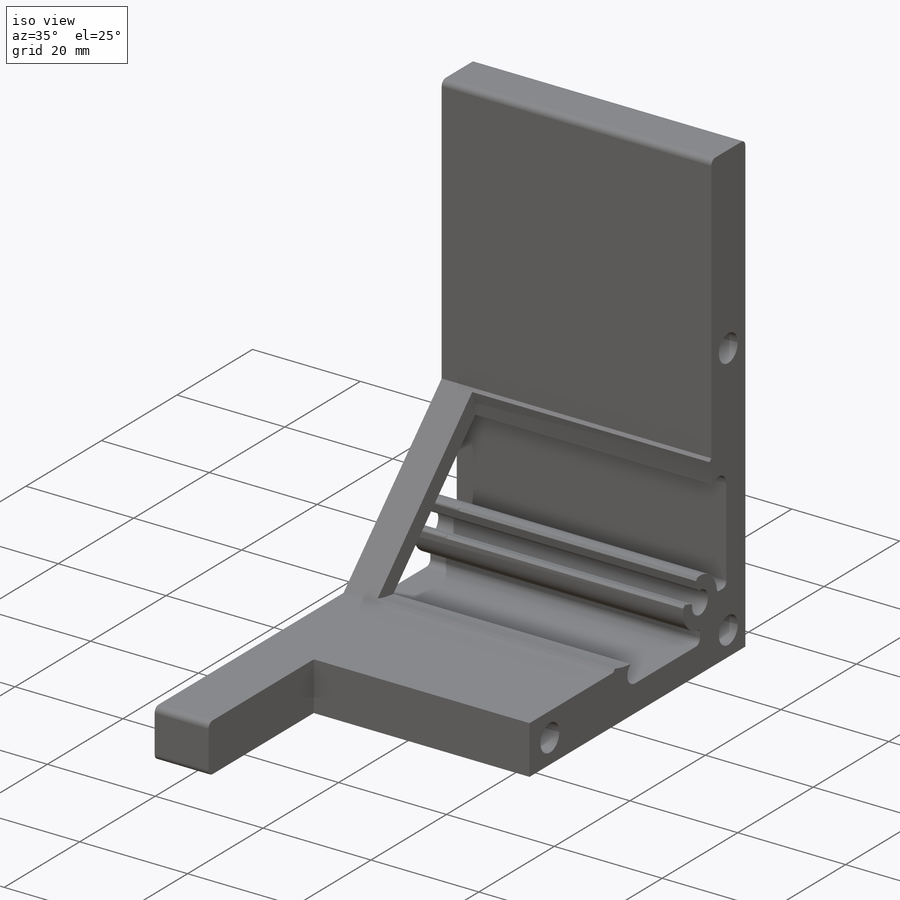
[diagram: iso view]
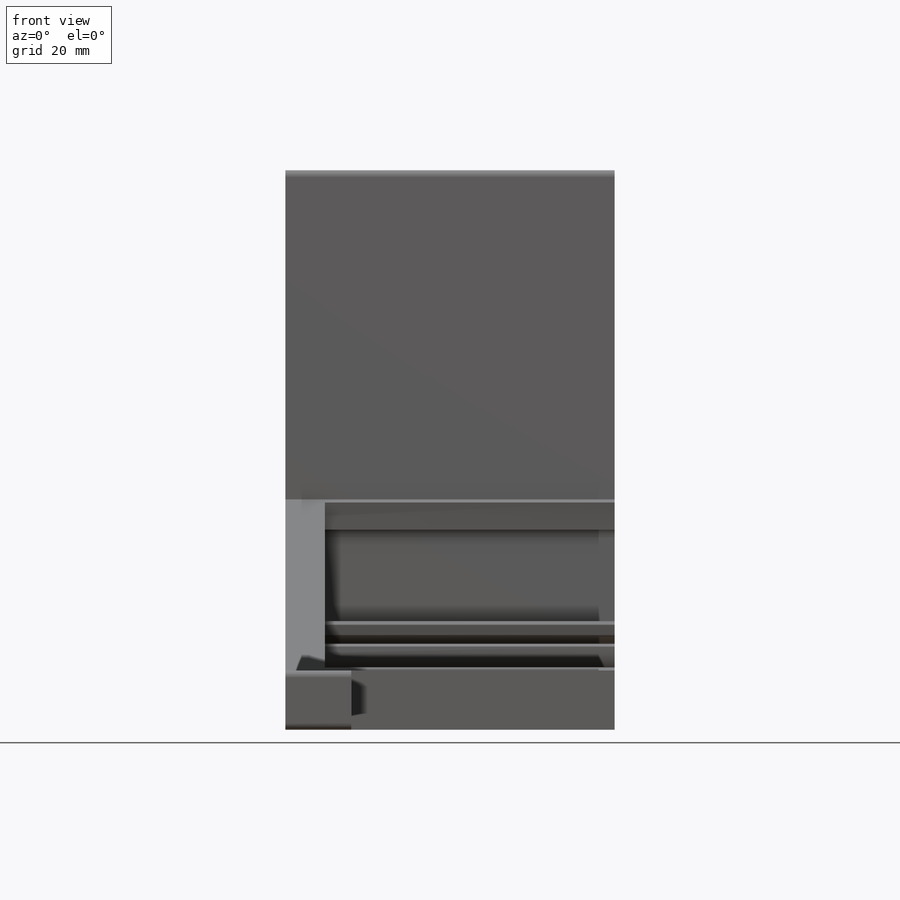
[diagram: front view]
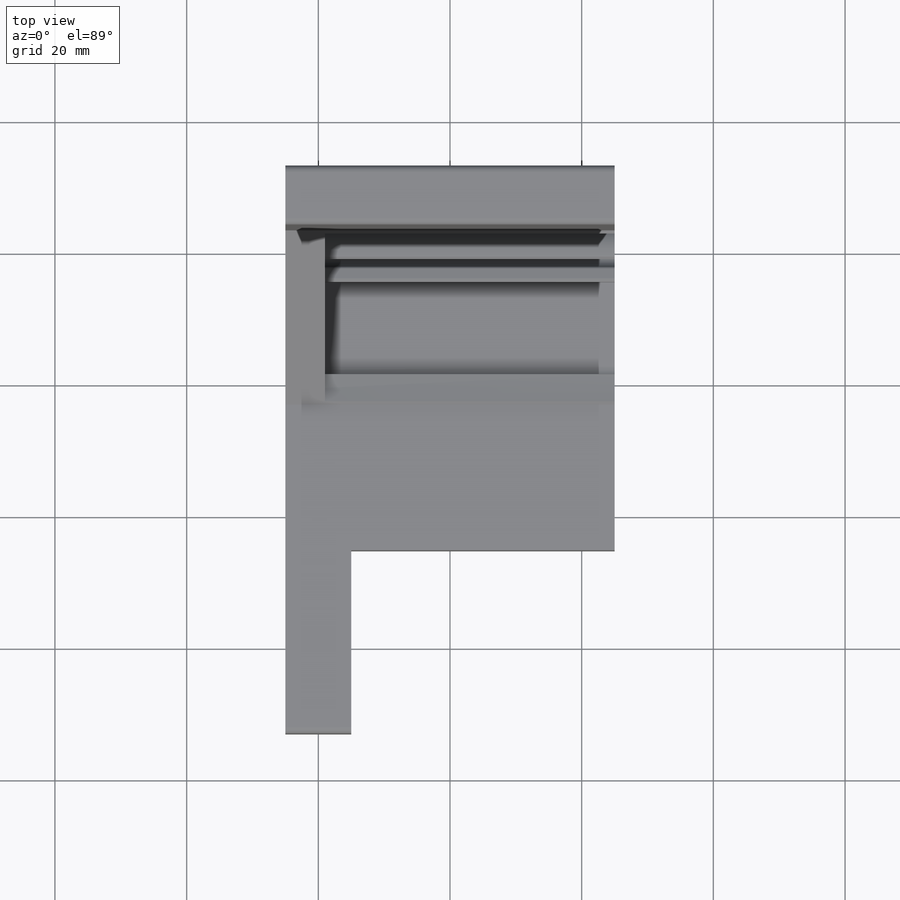
[diagram: top view]
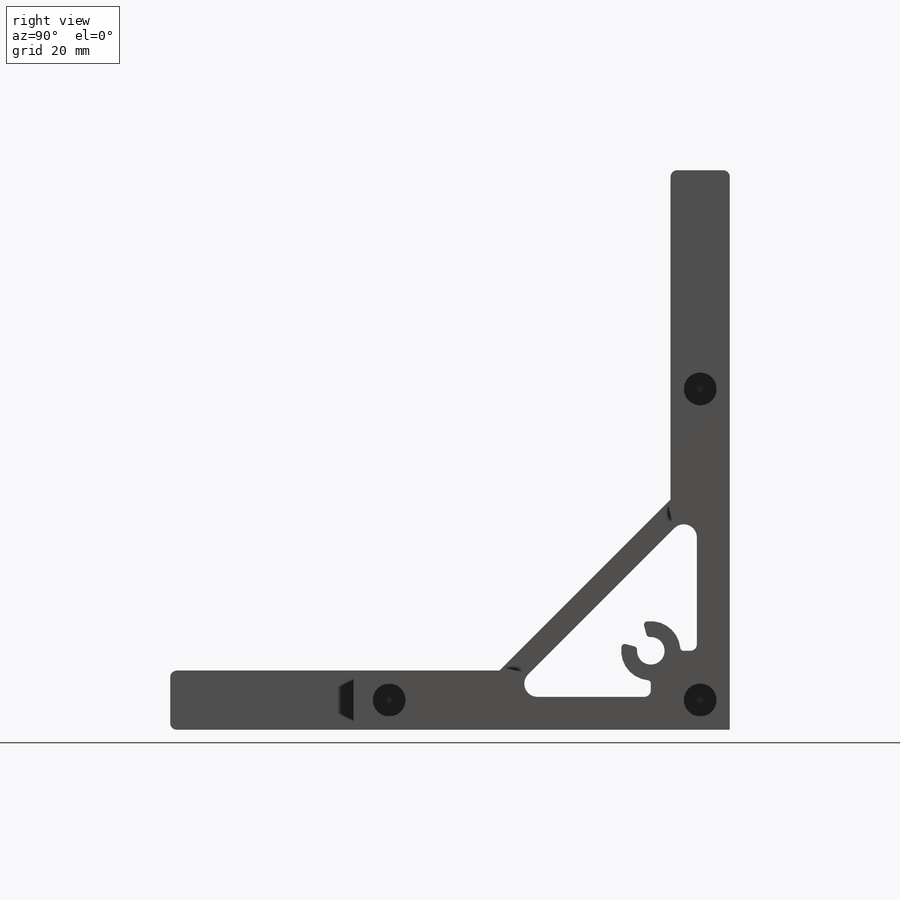
[diagram: right view]
SOLIDWORKS PART (.sldprt)
format: sldprt  version: not decoded by parser v0  size: 449,024 bytes
history: native  units: mm
features: sketch x10, cut_extrude x6, plane x2, material x1, extrude x1, cut_revolve x1 (+16 scaffold rows collapsed)
feature tree (37):
  scaffold x16  (default folders/planes/origin — collapsed)
  material  "1060 Alloy"
  sketch  "Sketch1"  dims[D1=50.0mm]
  plane  "Plane2"
  sketch  "Sketch14"
  sketch  "Sketch15"  dims[D1=57.15mm D2=57.15mm]
  sketch  "Sketch16"  dims[D1=5.0mm D2=47.244mm]
  cut_extrude  "Cut-Extrude2"  Depth=20mm
  extrude  "Point3"  [1 undecoded]
  plane  "Plane4"
  sketch  "Sketch18"  dims[c1.D1=6.35mm c1.D2=6.35mm c1.D3=20.0mm c1.D4=20.0mm c1.D5=~17.679933mm c2.D2=6.0mm c2.D1=40.0mm c2.D3=6.35mm c2.D4=57.15mm]
  cut_revolve  "Cut-Revolve1"  Angle=360deg
  sketch  "Sketch22"  dims[D1=3.175mm D2=10.0mm D3=25.0mm D4=4.0mm D5=4.0mm]
  cut_extrude  "Cut-Extrude7"  [1 undecoded]
  sketch  "Sketch23"  dims[D1=4.2mm]
  cut_extrude  "Cut-Extrude8"  [1 undecoded]
  sketch  "Sketch24"  dims[c1.D1=3.175mm c1.D2=3.175mm c1.D3=4.0mm c1.D4=10.0mm c1.D5=4.0mm c1.D6=20.0mm c1.D7=45.0mm c2.D4=57.15mm c2.D3=10.0mm]
  cut_extrude  "Cut-Extrude9"  [1 undecoded]
  sketch  "Sketch25"
  cut_extrude  "Cut-Extrude10"  [1 undecoded]
  sketch  "Sketch26"  dims[D1=12.0mm]
  cut_extrude  "Cut-Extrude11"  [1 undecoded]
decode coverage: 10 of 18 modeling features carry decoded parameters
note: ~ marks probable driven/reference dimensions
note: 6 parameter values undecoded
summary: no parameter record found for 6 features
note: suppression state not decoded; provenance and decode notes live in map.json
